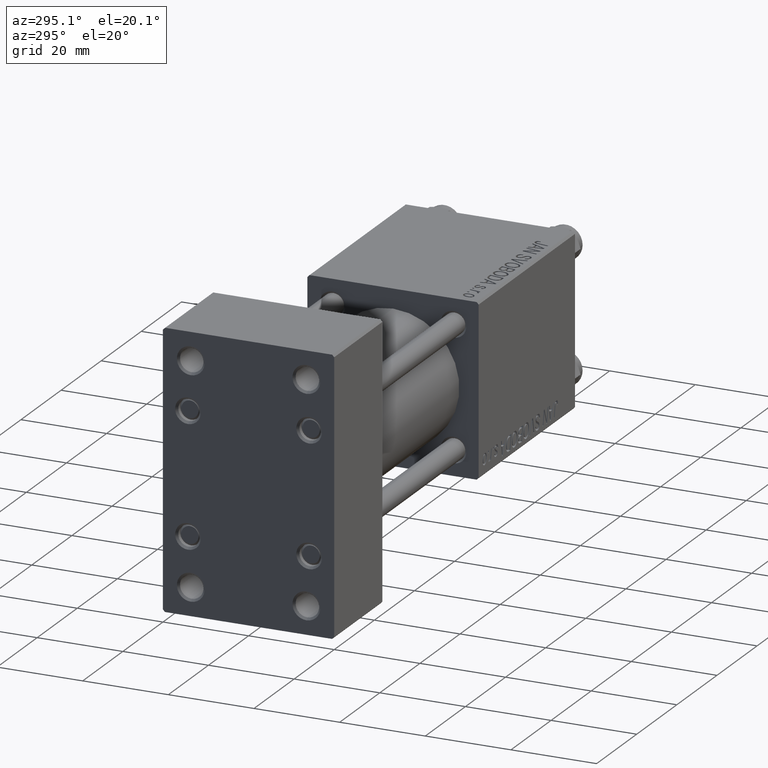
[diagram: clean part render]
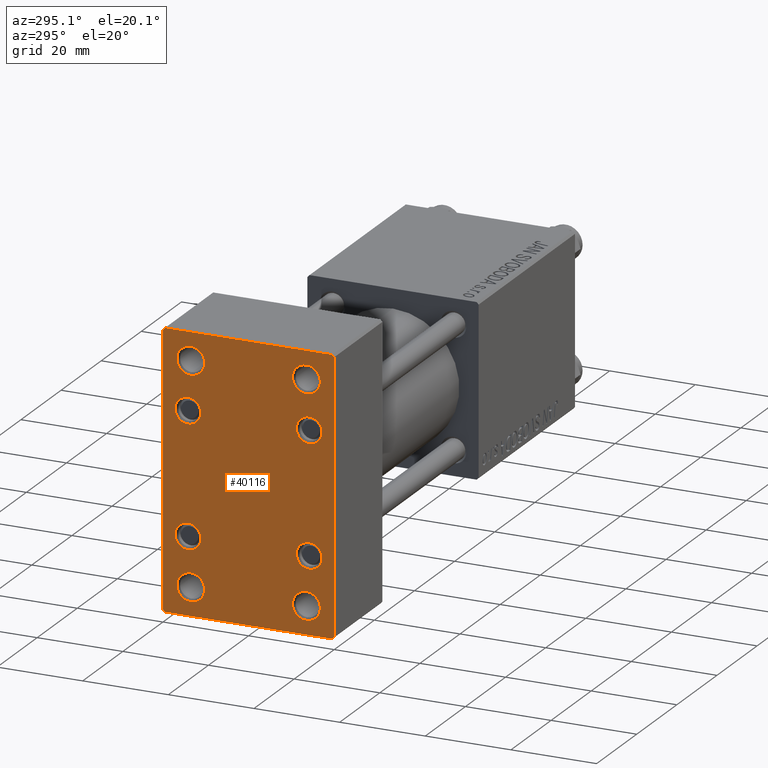
[diagram: same view with one face highlighted and labeled with its STEP entity id]
A machine part, auxiliary view. The second image highlights one B-rep face of the part: STEP entity #40116.
In plain terms, the highlighted planar face has unit normal (-1, 0, 0).
Its self-contained STEP definition (entity closure, byte-faithful):
#201 = CIRCLE ( 'NONE', #27604, 3.000000000000004441 ) ;
#304 = CARTESIAN_POINT ( 'NONE',  ( 0.000000000000000000, -14.14999999999999503, 14.15000000000000391 ) ) ;
#956 = CIRCLE ( 'NONE', #29195, 3.249999999999988898 ) ;
#1044 = CIRCLE ( 'NONE', #11493, 3.000000000000004441 ) ;
#1077 = VERTEX_POINT ( 'NONE', #49920 ) ;
#1490 = CARTESIAN_POINT ( 'NONE',  ( 0.000000000000000000, 19.99999999999999645, 32.00000000000000000 ) ) ;
#1651 = AXIS2_PLACEMENT_3D ( 'NONE', #7338, #34387, #37181 ) ;
#1853 = EDGE_CURVE ( 'NONE', #13405, #28361, #27697, .T. ) ;
#2178 = DIRECTION ( 'NONE',  ( 0.000000000000000000, -1.000000000000000000, 0.000000000000000000 ) ) ;
#2759 = DIRECTION ( 'NONE',  ( 1.000000000000000000, 0.000000000000000000, 0.000000000000000000 ) ) ;
#2782 = DIRECTION ( 'NONE',  ( 1.000000000000000000, 0.000000000000000000, 0.000000000000000000 ) ) ;
#3275 = EDGE_LOOP ( 'NONE', ( #29873, #21037 ) ) ;
#3397 = VERTEX_POINT ( 'NONE', #32454 ) ;
#3460 = CARTESIAN_POINT ( 'NONE',  ( 0.000000000000000000, -19.50000000000001776, 32.00000000000000000 ) ) ;
#3514 = ORIENTED_EDGE ( 'NONE', *, *, #40733, .T. ) ;
#3558 = PLANE ( 'NONE',  #1651 ) ;
#3566 = VERTEX_POINT ( 'NONE', #34945 ) ;
#5170 = CARTESIAN_POINT ( 'NONE',  ( 0.000000000000000000, -14.14999999999999503, -14.15000000000000391 ) ) ;
#5529 = CARTESIAN_POINT ( 'NONE',  ( 0.000000000000000000, -13.49999999999999822, -25.50000000000000000 ) ) ;
#5555 = CARTESIAN_POINT ( 'NONE',  ( -0.000000000000000000, -25.75000000000014211, 25.74999999999978684 ) ) ;
#5906 = VERTEX_POINT ( 'NONE', #8536 ) ;
#6349 = EDGE_LOOP ( 'NONE', ( #8378, #38284 ) ) ;
#6439 = CIRCLE ( 'NONE', #12867, 3.000000000000000888 ) ;
#6945 = CIRCLE ( 'NONE', #40845, 3.249999999999988898 ) ;
#7313 = EDGE_CURVE ( 'NONE', #44125, #22526, #34271, .T. ) ;
#7322 = VECTOR ( 'NONE', #36685, 1000.000000000000114 ) ;
#7338 = CARTESIAN_POINT ( 'NONE',  ( 0.000000000000000000, 0.000000000000000000, 0.000000000000000000 ) ) ;
#8024 = ORIENTED_EDGE ( 'NONE', *, *, #24883, .T. ) ;
#8378 = ORIENTED_EDGE ( 'NONE', *, *, #16361, .T. ) ;
#8536 = CARTESIAN_POINT ( 'NONE',  ( 0.000000000000000000, 13.50000000000000178, -28.74999999999998579 ) ) ;
#9059 = CARTESIAN_POINT ( 'NONE',  ( 0.000000000000000000, 19.49999999999999645, -31.99999999999999289 ) ) ;
#9171 = DIRECTION ( 'NONE',  ( 0.000000000000000000, 0.000000000000000000, 1.000000000000000000 ) ) ;
#9308 = DIRECTION ( 'NONE',  ( 0.000000000000000000, 0.000000000000000000, 1.000000000000000000 ) ) ;
#9729 = LINE ( 'NONE', #13771, #33774 ) ;
#9921 = EDGE_CURVE ( 'NONE', #15213, #27314, #30331, .T. ) ;
#10088 = DIRECTION ( 'NONE',  ( 1.000000000000000000, 0.000000000000000000, 0.000000000000000000 ) ) ;
#10399 = CARTESIAN_POINT ( 'NONE',  ( 0.000000000000000000, 13.50000000000000178, -25.50000000000000000 ) ) ;
#10794 = LINE ( 'NONE', #42362, #33314 ) ;
#11116 = FACE_OUTER_BOUND ( 'NONE', #21892, .T. ) ;
#11493 = AXIS2_PLACEMENT_3D ( 'NONE', #39146, #31571, #48439 ) ;
#11608 = ORIENTED_EDGE ( 'NONE', *, *, #44095, .T. ) ;
#11756 = CIRCLE ( 'NONE', #26323, 3.000000000000000888 ) ;
#11833 = CIRCLE ( 'NONE', #44911, 3.249999999999988898 ) ;
#11868 = VERTEX_POINT ( 'NONE', #40790 ) ;
#12112 = AXIS2_PLACEMENT_3D ( 'NONE', #44555, #36482, #48072 ) ;
#12243 = CARTESIAN_POINT ( 'NONE',  ( 0.000000000000000000, 14.14999999999999858, 17.15000000000000568 ) ) ;
#12257 = CARTESIAN_POINT ( 'NONE',  ( 0.000000000000000000, 19.99999999999999645, 32.00000000000000000 ) ) ;
#12262 = EDGE_CURVE ( 'NONE', #5906, #15474, #11833, .T. ) ;
#12867 = AXIS2_PLACEMENT_3D ( 'NONE', #37657, #19426, #18685 ) ;
#12907 = DIRECTION ( 'NONE',  ( 0.000000000000000000, 0.000000000000000000, 1.000000000000000000 ) ) ;
#12956 = CARTESIAN_POINT ( 'NONE',  ( 0.000000000000000000, -14.14999999999999503, -14.15000000000000391 ) ) ;
#13077 = CARTESIAN_POINT ( 'NONE',  ( 0.000000000000000000, -14.14999999999999503, 11.15000000000000213 ) ) ;
#13171 = LINE ( 'NONE', #48277, #7322 ) ;
#13356 = ORIENTED_EDGE ( 'NONE', *, *, #12262, .T. ) ;
#13405 = VERTEX_POINT ( 'NONE', #23529 ) ;
#13512 = EDGE_CURVE ( 'NONE', #22526, #44125, #15875, .T. ) ;
#13651 = CIRCLE ( 'NONE', #40290, 3.000000000000004441 ) ;
#13771 = CARTESIAN_POINT ( 'NONE',  ( 0.000000000000000000, 19.99999999999999645, -31.99999999999999289 ) ) ;
#14003 = CARTESIAN_POINT ( 'NONE',  ( 0.000000000000000000, -13.49999999999999822, 22.25000000000001066 ) ) ;
#14238 = VERTEX_POINT ( 'NONE', #48859 ) ;
#15015 = EDGE_CURVE ( 'NONE', #44925, #11868, #13651, .T. ) ;
#15213 = VERTEX_POINT ( 'NONE', #19521 ) ;
#15474 = VERTEX_POINT ( 'NONE', #22768 ) ;
#15836 = ORIENTED_EDGE ( 'NONE', *, *, #15015, .T. ) ;
#15852 = DIRECTION ( 'NONE',  ( 0.000000000000000000, 0.000000000000000000, -1.000000000000000000 ) ) ;
#15875 = CIRCLE ( 'NONE', #48979, 3.000000000000000888 ) ;
#15878 = LINE ( 'NONE', #1490, #32292 ) ;
#16089 = VERTEX_POINT ( 'NONE', #12243 ) ;
#16361 = EDGE_CURVE ( 'NONE', #28361, #13405, #956, .T. ) ;
#16450 = AXIS2_PLACEMENT_3D ( 'NONE', #21441, #2759, #18133 ) ;
#16589 = EDGE_CURVE ( 'NONE', #15474, #5906, #43666, .T. ) ;
#16641 = ORIENTED_EDGE ( 'NONE', *, *, #19797, .T. ) ;
#16791 = CARTESIAN_POINT ( 'NONE',  ( 0.000000000000000000, -20.00000000000000355, -31.49999999999997158 ) ) ;
#17031 = VERTEX_POINT ( 'NONE', #16791 ) ;
#17056 = CARTESIAN_POINT ( 'NONE',  ( 0.000000000000000000, -13.49999999999999822, 25.50000000000000000 ) ) ;
#17922 = VECTOR ( 'NONE', #40064, 1000.000000000000000 ) ;
#17962 = EDGE_LOOP ( 'NONE', ( #40708, #27742 ) ) ;
#18133 = DIRECTION ( 'NONE',  ( 0.000000000000000000, 0.000000000000000000, 1.000000000000000000 ) ) ;
#18685 = DIRECTION ( 'NONE',  ( 0.000000000000000000, 0.000000000000000000, 1.000000000000000000 ) ) ;
#18742 = DIRECTION ( 'NONE',  ( 1.000000000000000000, 0.000000000000000000, 0.000000000000000000 ) ) ;
#18913 = AXIS2_PLACEMENT_3D ( 'NONE', #304, #18742, #27320 ) ;
#18949 = FACE_BOUND ( 'NONE', #41660, .T. ) ;
#19136 = ORIENTED_EDGE ( 'NONE', *, *, #44389, .T. ) ;
#19156 = LINE ( 'NONE', #26993, #44047 ) ;
#19426 = DIRECTION ( 'NONE',  ( 1.000000000000000000, 0.000000000000000000, 0.000000000000000000 ) ) ;
#19469 = CARTESIAN_POINT ( 'NONE',  ( 0.000000000000000000, 13.50000000000000178, 25.50000000000000000 ) ) ;
#19521 = CARTESIAN_POINT ( 'NONE',  ( 0.000000000000000000, 14.14999999999999858, -11.14999999999999680 ) ) ;
#19797 = EDGE_CURVE ( 'NONE', #3566, #31884, #46992, .T. ) ;
#20082 = AXIS2_PLACEMENT_3D ( 'NONE', #5529, #47457, #9308 ) ;
#20266 = EDGE_LOOP ( 'NONE', ( #31666, #28454 ) ) ;
#20599 = EDGE_CURVE ( 'NONE', #49512, #31884, #38819, .T. ) ;
#20623 = ORIENTED_EDGE ( 'NONE', *, *, #16589, .T. ) ;
#20858 = DIRECTION ( 'NONE',  ( 0.000000000000000000, 0.000000000000000000, 1.000000000000000000 ) ) ;
#21037 = ORIENTED_EDGE ( 'NONE', *, *, #13512, .T. ) ;
#21362 = LINE ( 'NONE', #25150, #17922 ) ;
#21441 = CARTESIAN_POINT ( 'NONE',  ( 0.000000000000000000, -13.49999999999999822, 25.50000000000000000 ) ) ;
#21627 = EDGE_LOOP ( 'NONE', ( #8024, #22757 ) ) ;
#21690 = EDGE_CURVE ( 'NONE', #42280, #14238, #6945, .T. ) ;
#21722 = CARTESIAN_POINT ( 'NONE',  ( 0.000000000000000000, 13.50000000000000178, -25.50000000000000000 ) ) ;
#21892 = EDGE_LOOP ( 'NONE', ( #45920, #45796, #40522, #11608, #26251, #16641, #38675, #3514 ) ) ;
#22264 = FACE_BOUND ( 'NONE', #17962, .T. ) ;
#22506 = CIRCLE ( 'NONE', #20082, 3.249999999999988898 ) ;
#22513 = FACE_BOUND ( 'NONE', #39918, .T. ) ;
#22526 = VERTEX_POINT ( 'NONE', #13077 ) ;
#22757 = ORIENTED_EDGE ( 'NONE', *, *, #34487, .T. ) ;
#22768 = CARTESIAN_POINT ( 'NONE',  ( 0.000000000000000000, 13.50000000000000178, -22.25000000000001066 ) ) ;
#22939 = VERTEX_POINT ( 'NONE', #44048 ) ;
#23529 = CARTESIAN_POINT ( 'NONE',  ( 0.000000000000000000, 13.50000000000000178, 22.25000000000001066 ) ) ;
#24314 = AXIS2_PLACEMENT_3D ( 'NONE', #21722, #2782, #29810 ) ;
#24473 = CARTESIAN_POINT ( 'NONE',  ( 0.000000000000000000, 13.50000000000000178, 25.50000000000000000 ) ) ;
#24615 = DIRECTION ( 'NONE',  ( 1.000000000000000000, 0.000000000000000000, 0.000000000000000000 ) ) ;
#24883 = EDGE_CURVE ( 'NONE', #16089, #3397, #11756, .T. ) ;
#25118 = DIRECTION ( 'NONE',  ( 0.000000000000000000, 0.000000000000000000, 1.000000000000000000 ) ) ;
#25150 = CARTESIAN_POINT ( 'NONE',  ( 0.000000000000000000, -25.75000000000026645, -25.74999999999955591 ) ) ;
#25738 = EDGE_CURVE ( 'NONE', #3566, #17031, #19156, .T. ) ;
#25820 = VERTEX_POINT ( 'NONE', #27494 ) ;
#25828 = DIRECTION ( 'NONE',  ( 0.000000000000000000, 0.000000000000000000, 1.000000000000000000 ) ) ;
#26251 = ORIENTED_EDGE ( 'NONE', *, *, #25738, .F. ) ;
#26323 = AXIS2_PLACEMENT_3D ( 'NONE', #47648, #40336, #43124 ) ;
#26993 = CARTESIAN_POINT ( 'NONE',  ( 0.000000000000000000, -20.00000000000000355, 32.00000000000000000 ) ) ;
#27314 = VERTEX_POINT ( 'NONE', #42734 ) ;
#27320 = DIRECTION ( 'NONE',  ( 0.000000000000000000, 0.000000000000000000, 1.000000000000000000 ) ) ;
#27494 = CARTESIAN_POINT ( 'NONE',  ( 0.000000000000000000, 19.99999999999999645, 31.50000000000000000 ) ) ;
#27604 = AXIS2_PLACEMENT_3D ( 'NONE', #12956, #43299, #9171 ) ;
#27693 = DIRECTION ( 'NONE',  ( 0.000000000000000000, -1.000000000000000000, 0.000000000000000000 ) ) ;
#27697 = CIRCLE ( 'NONE', #32528, 3.249999999999988898 ) ;
#27742 = ORIENTED_EDGE ( 'NONE', *, *, #49450, .T. ) ;
#28361 = VERTEX_POINT ( 'NONE', #35984 ) ;
#28454 = ORIENTED_EDGE ( 'NONE', *, *, #45077, .T. ) ;
#28772 = DIRECTION ( 'NONE',  ( 0.000000000000000000, 0.000000000000000000, 1.000000000000000000 ) ) ;
#29118 = VERTEX_POINT ( 'NONE', #41987 ) ;
#29195 = AXIS2_PLACEMENT_3D ( 'NONE', #19469, #31100, #34899 ) ;
#29205 = DIRECTION ( 'NONE',  ( 1.000000000000000000, 0.000000000000000000, 0.000000000000000000 ) ) ;
#29323 = CARTESIAN_POINT ( 'NONE',  ( 0.000000000000000000, -14.14999999999999503, 14.15000000000000391 ) ) ;
#29355 = FACE_BOUND ( 'NONE', #36411, .T. ) ;
#29810 = DIRECTION ( 'NONE',  ( 0.000000000000000000, 0.000000000000000000, 1.000000000000000000 ) ) ;
#29873 = ORIENTED_EDGE ( 'NONE', *, *, #7313, .T. ) ;
#30331 = CIRCLE ( 'NONE', #48867, 3.000000000000004441 ) ;
#30348 = FACE_BOUND ( 'NONE', #20266, .T. ) ;
#30763 = DIRECTION ( 'NONE',  ( -0.000000000000000000, -0.7071067811865524577, -0.7071067811865426878 ) ) ;
#31100 = DIRECTION ( 'NONE',  ( 1.000000000000000000, 0.000000000000000000, 0.000000000000000000 ) ) ;
#31522 = VERTEX_POINT ( 'NONE', #40073 ) ;
#31571 = DIRECTION ( 'NONE',  ( 1.000000000000000000, 0.000000000000000000, 0.000000000000000000 ) ) ;
#31666 = ORIENTED_EDGE ( 'NONE', *, *, #9921, .T. ) ;
#31884 = VERTEX_POINT ( 'NONE', #3460 ) ;
#32136 = CARTESIAN_POINT ( 'NONE',  ( 0.000000000000000000, 14.14999999999999858, -14.15000000000000036 ) ) ;
#32292 = VECTOR ( 'NONE', #39878, 1000.000000000000000 ) ;
#32333 = CIRCLE ( 'NONE', #12112, 3.249999999999988898 ) ;
#32454 = CARTESIAN_POINT ( 'NONE',  ( 0.000000000000000000, 14.14999999999999858, 11.14999999999999858 ) ) ;
#32528 = AXIS2_PLACEMENT_3D ( 'NONE', #24473, #39881, #28772 ) ;
#32701 = VECTOR ( 'NONE', #35643, 1000.000000000000000 ) ;
#33314 = VECTOR ( 'NONE', #30763, 1000.000000000000000 ) ;
#33774 = VECTOR ( 'NONE', #2178, 1000.000000000000000 ) ;
#33885 = CARTESIAN_POINT ( 'NONE',  ( 0.000000000000000000, -14.14999999999999503, -11.15000000000000036 ) ) ;
#34150 = FACE_BOUND ( 'NONE', #3275, .T. ) ;
#34271 = CIRCLE ( 'NONE', #18913, 3.000000000000000888 ) ;
#34387 = DIRECTION ( 'NONE',  ( -1.000000000000000000, 0.000000000000000000, -0.000000000000000000 ) ) ;
#34487 = EDGE_CURVE ( 'NONE', #3397, #16089, #6439, .T. ) ;
#34899 = DIRECTION ( 'NONE',  ( 0.000000000000000000, 0.000000000000000000, 1.000000000000000000 ) ) ;
#34945 = CARTESIAN_POINT ( 'NONE',  ( 0.000000000000000000, -20.00000000000000355, 31.50000000000000711 ) ) ;
#35411 = EDGE_CURVE ( 'NONE', #25820, #29118, #15878, .T. ) ;
#35643 = DIRECTION ( 'NONE',  ( -0.000000000000000000, 0.7071067811865426878, 0.7071067811865524577 ) ) ;
#35890 = DIRECTION ( 'NONE',  ( 0.000000000000000000, 0.000000000000000000, 1.000000000000000000 ) ) ;
#35984 = CARTESIAN_POINT ( 'NONE',  ( 0.000000000000000000, 13.50000000000000178, 28.74999999999998579 ) ) ;
#36411 = EDGE_LOOP ( 'NONE', ( #48390, #47288 ) ) ;
#36482 = DIRECTION ( 'NONE',  ( 1.000000000000000000, 0.000000000000000000, 0.000000000000000000 ) ) ;
#36525 = CARTESIAN_POINT ( 'NONE',  ( 0.000000000000000000, -14.14999999999999503, 17.15000000000000924 ) ) ;
#36685 = DIRECTION ( 'NONE',  ( 0.000000000000000000, 0.7071067811865474617, -0.7071067811865474617 ) ) ;
#36816 = EDGE_CURVE ( 'NONE', #1077, #22939, #32333, .T. ) ;
#37181 = DIRECTION ( 'NONE',  ( -0.000000000000000000, 0.000000000000000000, 1.000000000000000000 ) ) ;
#37657 = CARTESIAN_POINT ( 'NONE',  ( 0.000000000000000000, 14.14999999999999858, 14.15000000000000036 ) ) ;
#38184 = VERTEX_POINT ( 'NONE', #9059 ) ;
#38284 = ORIENTED_EDGE ( 'NONE', *, *, #1853, .T. ) ;
#38675 = ORIENTED_EDGE ( 'NONE', *, *, #20599, .F. ) ;
#38819 = LINE ( 'NONE', #12257, #40811 ) ;
#39146 = CARTESIAN_POINT ( 'NONE',  ( 0.000000000000000000, 14.14999999999999858, -14.15000000000000036 ) ) ;
#39878 = DIRECTION ( 'NONE',  ( 0.000000000000000000, 0.000000000000000000, -1.000000000000000000 ) ) ;
#39881 = DIRECTION ( 'NONE',  ( 1.000000000000000000, 0.000000000000000000, 0.000000000000000000 ) ) ;
#39918 = EDGE_LOOP ( 'NONE', ( #20623, #13356 ) ) ;
#40064 = DIRECTION ( 'NONE',  ( 0.000000000000000000, -0.7071067811865378028, 0.7071067811865573427 ) ) ;
#40073 = CARTESIAN_POINT ( 'NONE',  ( 0.000000000000000000, -19.49999999999999645, -31.99999999999999289 ) ) ;
#40116 = ADVANCED_FACE ( 'NONE', ( #49019, #29355, #22264, #22513, #34150, #18949, #30348, #45731, #11116 ), #3558, .T. ) ;
#40290 = AXIS2_PLACEMENT_3D ( 'NONE', #5170, #24615, #25118 ) ;
#40336 = DIRECTION ( 'NONE',  ( 1.000000000000000000, 0.000000000000000000, 0.000000000000000000 ) ) ;
#40522 = ORIENTED_EDGE ( 'NONE', *, *, #48746, .T. ) ;
#40708 = ORIENTED_EDGE ( 'NONE', *, *, #36816, .T. ) ;
#40733 = EDGE_CURVE ( 'NONE', #49512, #25820, #13171, .T. ) ;
#40790 = CARTESIAN_POINT ( 'NONE',  ( 0.000000000000000000, -14.14999999999999503, -17.15000000000000924 ) ) ;
#40811 = VECTOR ( 'NONE', #27693, 1000.000000000000000 ) ;
#40845 = AXIS2_PLACEMENT_3D ( 'NONE', #17056, #29205, #20858 ) ;
#41233 = DIRECTION ( 'NONE',  ( 1.000000000000000000, 0.000000000000000000, 0.000000000000000000 ) ) ;
#41643 = CARTESIAN_POINT ( 'NONE',  ( 0.000000000000000000, 19.49999999999999645, 32.00000000000000000 ) ) ;
#41660 = EDGE_LOOP ( 'NONE', ( #15836, #19136 ) ) ;
#41987 = CARTESIAN_POINT ( 'NONE',  ( 0.000000000000000000, 19.99999999999999645, -31.50000000000000000 ) ) ;
#42280 = VERTEX_POINT ( 'NONE', #14003 ) ;
#42362 = CARTESIAN_POINT ( 'NONE',  ( -0.000000000000000000, 25.74999999999986144, -25.75000000000021672 ) ) ;
#42734 = CARTESIAN_POINT ( 'NONE',  ( 0.000000000000000000, 14.14999999999999858, -17.15000000000000568 ) ) ;
#43097 = CIRCLE ( 'NONE', #16450, 3.249999999999988898 ) ;
#43124 = DIRECTION ( 'NONE',  ( 0.000000000000000000, 0.000000000000000000, 1.000000000000000000 ) ) ;
#43299 = DIRECTION ( 'NONE',  ( 1.000000000000000000, 0.000000000000000000, 0.000000000000000000 ) ) ;
#43666 = CIRCLE ( 'NONE', #24314, 3.249999999999988898 ) ;
#44047 = VECTOR ( 'NONE', #15852, 1000.000000000000000 ) ;
#44048 = CARTESIAN_POINT ( 'NONE',  ( 0.000000000000000000, -13.49999999999999822, -28.74999999999998579 ) ) ;
#44095 = EDGE_CURVE ( 'NONE', #31522, #17031, #21362, .T. ) ;
#44125 = VERTEX_POINT ( 'NONE', #36525 ) ;
#44389 = EDGE_CURVE ( 'NONE', #11868, #44925, #201, .T. ) ;
#44555 = CARTESIAN_POINT ( 'NONE',  ( 0.000000000000000000, -13.49999999999999822, -25.50000000000000000 ) ) ;
#44911 = AXIS2_PLACEMENT_3D ( 'NONE', #10399, #41233, #25828 ) ;
#44925 = VERTEX_POINT ( 'NONE', #33885 ) ;
#45077 = EDGE_CURVE ( 'NONE', #27314, #15213, #1044, .T. ) ;
#45412 = EDGE_CURVE ( 'NONE', #29118, #38184, #10794, .T. ) ;
#45731 = FACE_BOUND ( 'NONE', #21627, .T. ) ;
#45796 = ORIENTED_EDGE ( 'NONE', *, *, #45412, .T. ) ;
#45920 = ORIENTED_EDGE ( 'NONE', *, *, #35411, .T. ) ;
#46143 = EDGE_CURVE ( 'NONE', #14238, #42280, #43097, .T. ) ;
#46992 = LINE ( 'NONE', #5555, #32701 ) ;
#47288 = ORIENTED_EDGE ( 'NONE', *, *, #21690, .T. ) ;
#47457 = DIRECTION ( 'NONE',  ( 1.000000000000000000, 0.000000000000000000, 0.000000000000000000 ) ) ;
#47520 = DIRECTION ( 'NONE',  ( 1.000000000000000000, 0.000000000000000000, 0.000000000000000000 ) ) ;
#47648 = CARTESIAN_POINT ( 'NONE',  ( 0.000000000000000000, 14.14999999999999858, 14.15000000000000036 ) ) ;
#48072 = DIRECTION ( 'NONE',  ( 0.000000000000000000, 0.000000000000000000, 1.000000000000000000 ) ) ;
#48277 = CARTESIAN_POINT ( 'NONE',  ( -0.000000000000000000, 25.75000000000000000, 25.75000000000000000 ) ) ;
#48390 = ORIENTED_EDGE ( 'NONE', *, *, #46143, .T. ) ;
#48439 = DIRECTION ( 'NONE',  ( 0.000000000000000000, 0.000000000000000000, 1.000000000000000000 ) ) ;
#48746 = EDGE_CURVE ( 'NONE', #38184, #31522, #9729, .T. ) ;
#48859 = CARTESIAN_POINT ( 'NONE',  ( 0.000000000000000000, -13.49999999999999822, 28.74999999999998579 ) ) ;
#48867 = AXIS2_PLACEMENT_3D ( 'NONE', #32136, #47520, #12907 ) ;
#48979 = AXIS2_PLACEMENT_3D ( 'NONE', #29323, #10088, #35890 ) ;
#49019 = FACE_BOUND ( 'NONE', #6349, .T. ) ;
#49450 = EDGE_CURVE ( 'NONE', #22939, #1077, #22506, .T. ) ;
#49512 = VERTEX_POINT ( 'NONE', #41643 ) ;
#49920 = CARTESIAN_POINT ( 'NONE',  ( 0.000000000000000000, -13.49999999999999822, -22.25000000000001066 ) ) ;